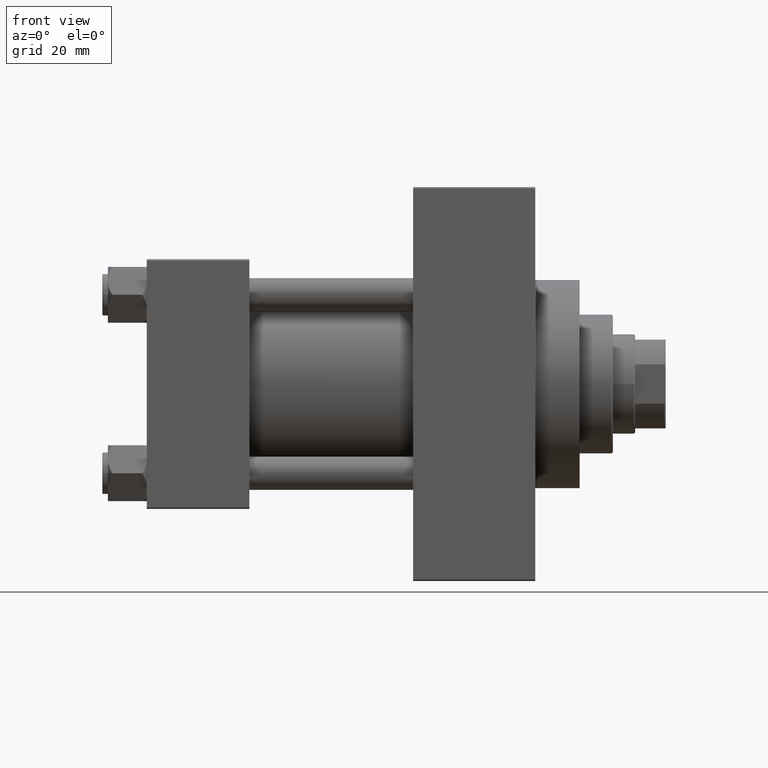
[diagram: clean part render]
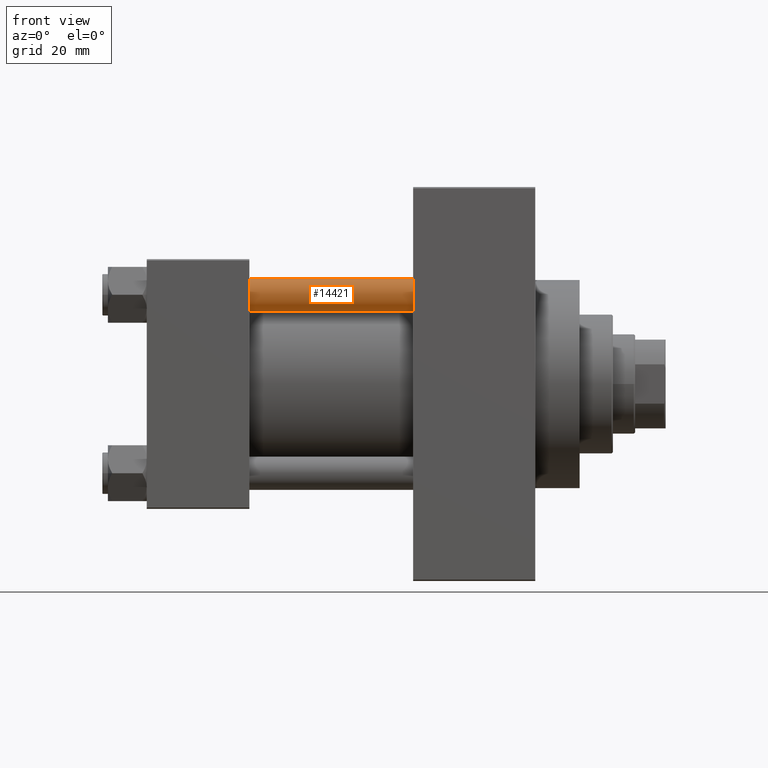
[diagram: same view with one face highlighted and labeled with its STEP entity id]
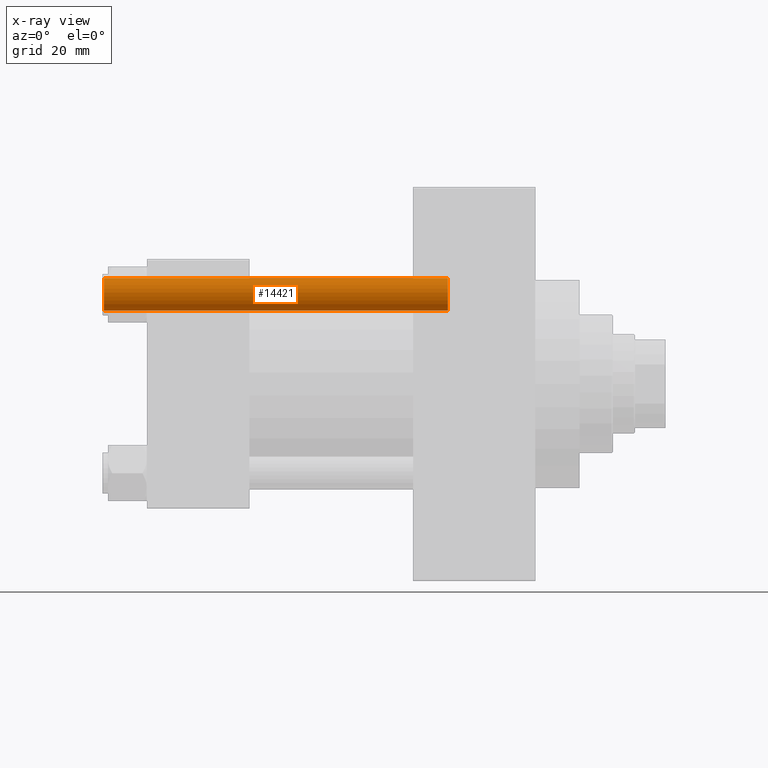
[diagram: x-ray of the same camera — body ghosted, the highlighted face saturated]
A machine part, front view. The second image highlights one B-rep face of the part: STEP entity #14421.
The next image is the same camera in x-ray: the body ghosted, the highlighted face saturated — about 0% of this face is hidden behind the body in this view.
In plain terms, the highlighted cylindrical surface (edge-blend (fillet) strip) has radius 6 mm, axis along (1, 0, 0).
Its self-contained STEP definition (entity closure, byte-faithful):
#183 = DIRECTION ( 'NONE',  ( -0.000000000000000000, -0.000000000000000000, -1.000000000000000000 ) ) ;
#1185 = CIRCLE ( 'NONE', #17928, 6.000000000000000888 ) ;
#3928 = VECTOR ( 'NONE', #17746, 1000.000000000000000 ) ;
#3990 = VERTEX_POINT ( 'NONE', #21043 ) ;
#4103 = DIRECTION ( 'NONE',  ( 1.000000000000000000, 0.000000000000000000, 0.000000000000000000 ) ) ;
#4119 = VERTEX_POINT ( 'NONE', #10993 ) ;
#4864 = DIRECTION ( 'NONE',  ( -1.000000000000000000, 0.000000000000000000, 0.000000000000000000 ) ) ;
#5794 = ORIENTED_EDGE ( 'NONE', *, *, #28230, .T. ) ;
#8026 = CARTESIAN_POINT ( 'NONE',  ( 6.000000000000000888, 7.347880794884120722E-16, 124.5000000000000000 ) ) ;
#8214 = DIRECTION ( 'NONE',  ( -0.000000000000000000, -0.000000000000000000, -1.000000000000000000 ) ) ;
#10164 = DIRECTION ( 'NONE',  ( 1.000000000000000000, 0.000000000000000000, 0.000000000000000000 ) ) ;
#10251 = EDGE_CURVE ( 'NONE', #14774, #4119, #18081, .T. ) ;
#10993 = CARTESIAN_POINT ( 'NONE',  ( -6.000000000000000888, 0.000000000000000000, 0.4999999999999865663 ) ) ;
#14421 = ADVANCED_FACE ( 'NONE', ( #30886 ), #34224, .T. ) ;
#14618 = CARTESIAN_POINT ( 'NONE',  ( 0.000000000000000000, 0.000000000000000000, 0.4999999999999865663 ) ) ;
#14774 = VERTEX_POINT ( 'NONE', #37754 ) ;
#17746 = DIRECTION ( 'NONE',  ( -0.000000000000000000, -0.000000000000000000, -1.000000000000000000 ) ) ;
#17928 = AXIS2_PLACEMENT_3D ( 'NONE', #36419, #42880, #10164 ) ;
#18081 = LINE ( 'NONE', #46745, #29000 ) ;
#20215 = AXIS2_PLACEMENT_3D ( 'NONE', #14618, #25820, #4103 ) ;
#21043 = CARTESIAN_POINT ( 'NONE',  ( 6.000000000000000888, 7.347880794884120722E-16, 0.4999999999999865663 ) ) ;
#21395 = AXIS2_PLACEMENT_3D ( 'NONE', #41395, #8214, #4864 ) ;
#25820 = DIRECTION ( 'NONE',  ( -0.000000000000000000, -0.000000000000000000, 1.000000000000000000 ) ) ;
#27762 = EDGE_LOOP ( 'NONE', ( #33230, #45664, #5794, #46582 ) ) ;
#28230 = EDGE_CURVE ( 'NONE', #3990, #4119, #42322, .T. ) ;
#28735 = LINE ( 'NONE', #33248, #3928 ) ;
#29000 = VECTOR ( 'NONE', #183, 1000.000000000000000 ) ;
#30886 = FACE_OUTER_BOUND ( 'NONE', #27762, .T. ) ;
#31676 = EDGE_CURVE ( 'NONE', #35400, #3990, #28735, .T. ) ;
#33230 = ORIENTED_EDGE ( 'NONE', *, *, #44488, .T. ) ;
#33248 = CARTESIAN_POINT ( 'NONE',  ( 6.000000000000000888, 7.347880794884120722E-16, 125.0000000000000000 ) ) ;
#34224 = CYLINDRICAL_SURFACE ( 'NONE', #21395, 6.000000000000000888 ) ;
#35400 = VERTEX_POINT ( 'NONE', #8026 ) ;
#36419 = CARTESIAN_POINT ( 'NONE',  ( 0.000000000000000000, 0.000000000000000000, 124.5000000000000000 ) ) ;
#37754 = CARTESIAN_POINT ( 'NONE',  ( -6.000000000000000888, 0.000000000000000000, 124.5000000000000000 ) ) ;
#41395 = CARTESIAN_POINT ( 'NONE',  ( 0.000000000000000000, 0.000000000000000000, 125.0000000000000000 ) ) ;
#42322 = CIRCLE ( 'NONE', #20215, 6.000000000000000888 ) ;
#42880 = DIRECTION ( 'NONE',  ( 0.000000000000000000, 0.000000000000000000, -1.000000000000000000 ) ) ;
#44488 = EDGE_CURVE ( 'NONE', #14774, #35400, #1185, .T. ) ;
#45664 = ORIENTED_EDGE ( 'NONE', *, *, #31676, .T. ) ;
#46582 = ORIENTED_EDGE ( 'NONE', *, *, #10251, .F. ) ;
#46745 = CARTESIAN_POINT ( 'NONE',  ( -6.000000000000000888, 0.000000000000000000, 125.0000000000000000 ) ) ;